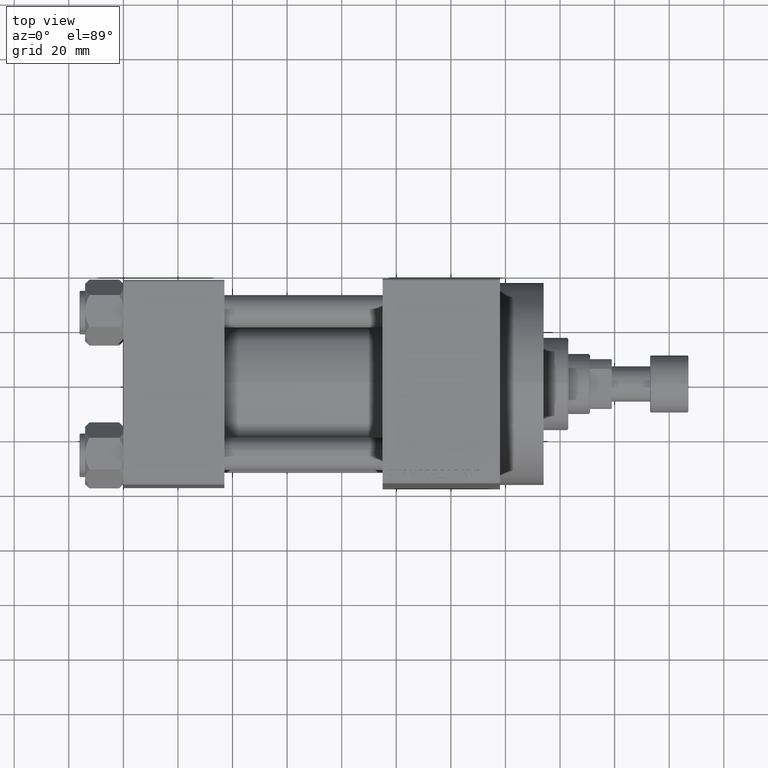
[diagram: clean part render]
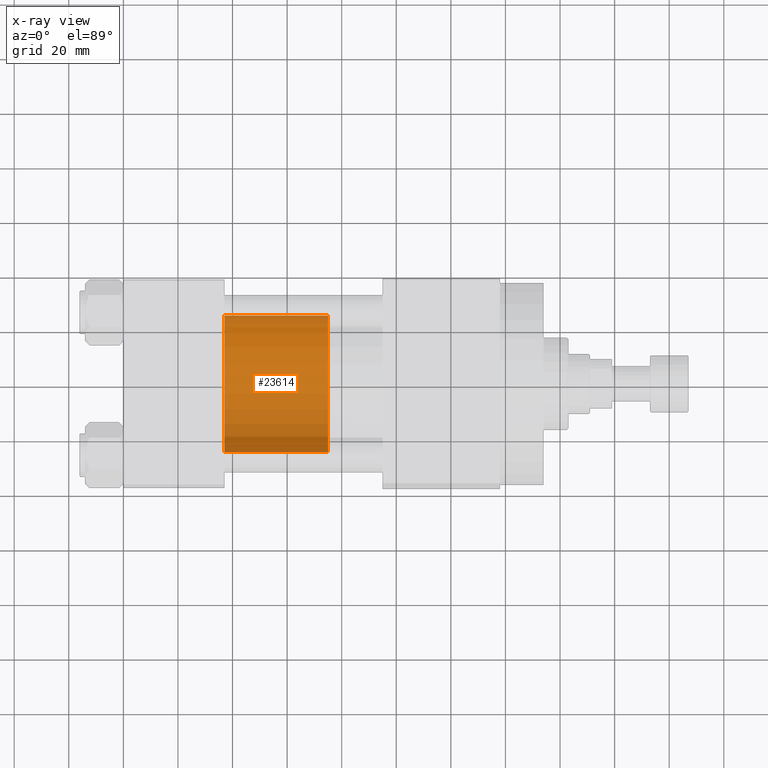
[diagram: x-ray — body ghosted, one internal face saturated and labeled with its STEP entity id]
A machine part, top view, then the same camera in x-ray: the body is ghosted and one INTERNAL B-rep face — a face not visible from any outside direction — is saturated and labeled: STEP entity #23614.
In plain terms, the highlighted cylindrical surface (partial cylindrical patch) has radius 25 mm, axis along (-1, 0, 0).
Its self-contained STEP definition (entity closure, byte-faithful):
#3561 = ORIENTED_EDGE ( 'NONE', *, *, #31580, .T. ) ;
#5961 = CARTESIAN_POINT ( 'NONE',  ( 0.000000000000000000, 0.000000000000000000, 0.000000000000000000 ) ) ;
#5992 = DIRECTION ( 'NONE',  ( -0.000000000000000000, -0.000000000000000000, -1.000000000000000000 ) ) ;
#6434 = CARTESIAN_POINT ( 'NONE',  ( 25.00000000000000000, 3.061616997868383043E-15, 38.00000000000000000 ) ) ;
#9170 = CARTESIAN_POINT ( 'NONE',  ( 0.000000000000000000, 0.000000000000000000, 38.00000000000000000 ) ) ;
#9615 = DIRECTION ( 'NONE',  ( -1.000000000000000000, 0.000000000000000000, 0.000000000000000000 ) ) ;
#10054 = LINE ( 'NONE', #6434, #32504 ) ;
#10114 = CARTESIAN_POINT ( 'NONE',  ( -25.00000000000000000, 0.000000000000000000, 38.00000000000000000 ) ) ;
#11888 = CARTESIAN_POINT ( 'NONE',  ( -25.00000000000000000, 0.000000000000000000, 38.00000000000000000 ) ) ;
#13266 = DIRECTION ( 'NONE',  ( 1.000000000000000000, 0.000000000000000000, 0.000000000000000000 ) ) ;
#14392 = ORIENTED_EDGE ( 'NONE', *, *, #34199, .T. ) ;
#17343 = FACE_OUTER_BOUND ( 'NONE', #40667, .T. ) ;
#18655 = AXIS2_PLACEMENT_3D ( 'NONE', #5961, #20929, #46341 ) ;
#18731 = CARTESIAN_POINT ( 'NONE',  ( -25.00000000000000000, 0.000000000000000000, 0.000000000000000000 ) ) ;
#19389 = LINE ( 'NONE', #11888, #35660 ) ;
#20929 = DIRECTION ( 'NONE',  ( 0.000000000000000000, 0.000000000000000000, 1.000000000000000000 ) ) ;
#21679 = VERTEX_POINT ( 'NONE', #18731 ) ;
#23614 = ADVANCED_FACE ( 'NONE', ( #17343 ), #24118, .T. ) ;
#24118 = CYLINDRICAL_SURFACE ( 'NONE', #33100, 25.00000000000000000 ) ;
#25715 = EDGE_CURVE ( 'NONE', #41181, #26726, #29327, .T. ) ;
#26219 = AXIS2_PLACEMENT_3D ( 'NONE', #9170, #31661, #13266 ) ;
#26726 = VERTEX_POINT ( 'NONE', #10114 ) ;
#27121 = DIRECTION ( 'NONE',  ( -0.000000000000000000, -0.000000000000000000, -1.000000000000000000 ) ) ;
#27297 = CARTESIAN_POINT ( 'NONE',  ( 25.00000000000000000, 3.061616997868383043E-15, 38.00000000000000000 ) ) ;
#29327 = CIRCLE ( 'NONE', #26219, 25.00000000000000000 ) ;
#30263 = CIRCLE ( 'NONE', #18655, 25.00000000000000000 ) ;
#30943 = ORIENTED_EDGE ( 'NONE', *, *, #25715, .F. ) ;
#31257 = ORIENTED_EDGE ( 'NONE', *, *, #33851, .F. ) ;
#31580 = EDGE_CURVE ( 'NONE', #41181, #37424, #10054, .T. ) ;
#31661 = DIRECTION ( 'NONE',  ( 0.000000000000000000, 0.000000000000000000, 1.000000000000000000 ) ) ;
#32504 = VECTOR ( 'NONE', #36408, 1000.000000000000000 ) ;
#33100 = AXIS2_PLACEMENT_3D ( 'NONE', #35491, #5992, #9615 ) ;
#33851 = EDGE_CURVE ( 'NONE', #26726, #21679, #19389, .T. ) ;
#34199 = EDGE_CURVE ( 'NONE', #37424, #21679, #30263, .T. ) ;
#35491 = CARTESIAN_POINT ( 'NONE',  ( 0.000000000000000000, 0.000000000000000000, 38.00000000000000000 ) ) ;
#35660 = VECTOR ( 'NONE', #27121, 1000.000000000000000 ) ;
#36408 = DIRECTION ( 'NONE',  ( -0.000000000000000000, -0.000000000000000000, -1.000000000000000000 ) ) ;
#37424 = VERTEX_POINT ( 'NONE', #44457 ) ;
#40667 = EDGE_LOOP ( 'NONE', ( #30943, #3561, #14392, #31257 ) ) ;
#41181 = VERTEX_POINT ( 'NONE', #27297 ) ;
#44457 = CARTESIAN_POINT ( 'NONE',  ( 25.00000000000000000, 3.061616997868383043E-15, 0.000000000000000000 ) ) ;
#46341 = DIRECTION ( 'NONE',  ( 1.000000000000000000, 0.000000000000000000, 0.000000000000000000 ) ) ;